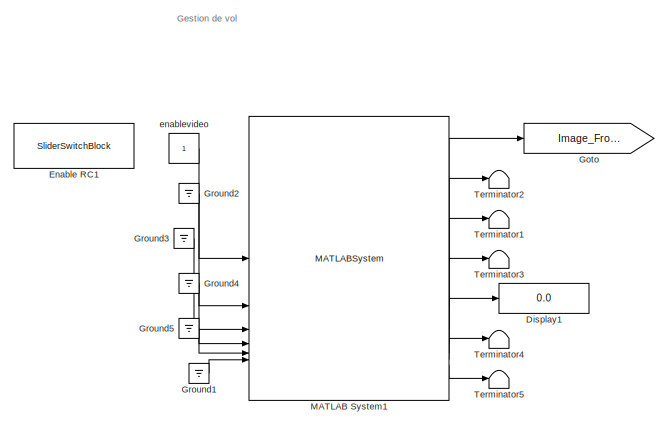
[diagram: root canvas - part 1/5, top center region]
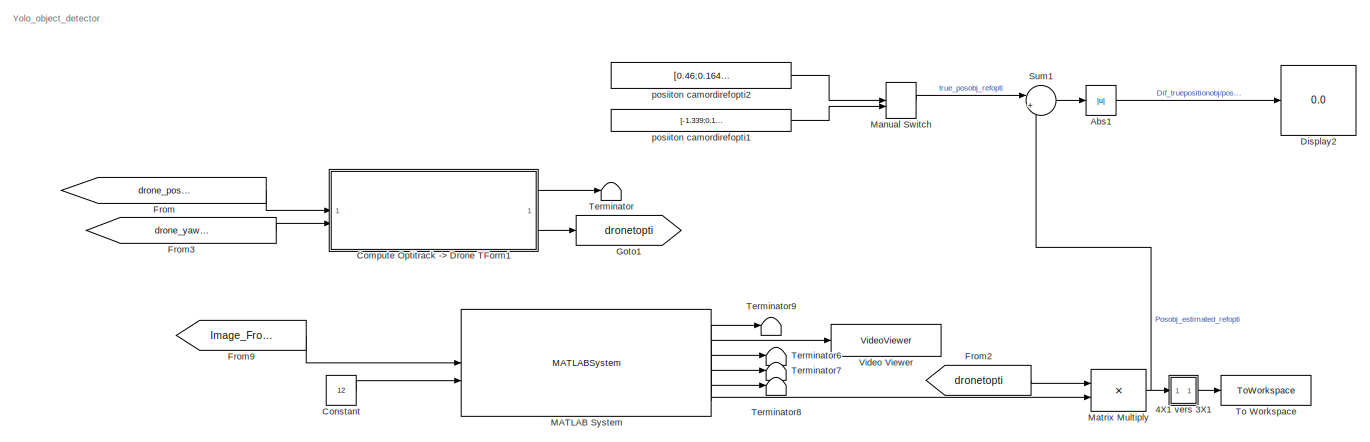
[diagram: root canvas - part 2/5, middle left region]
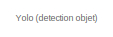
[diagram: root canvas - part 3/5, top left region]
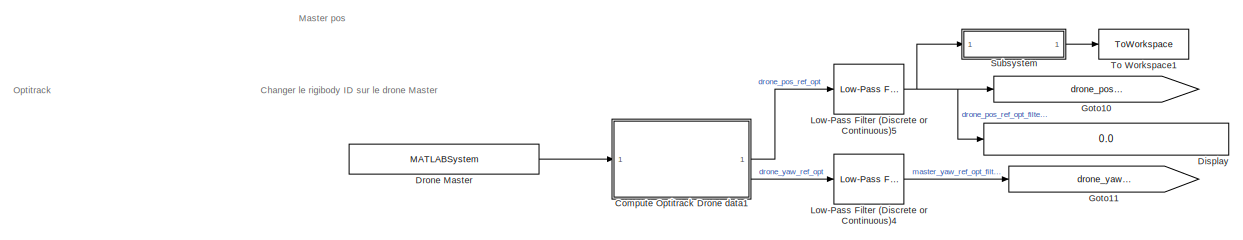
[diagram: root canvas - part 4/5, bottom left region]
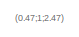
[diagram: root canvas - part 5/5, bottom right region]
MODEL slx_41b9bbb129d4
KIND model
CONFIG AbsTol = auto
CONFIG EnableMultiTasking = off
CONFIG FixedStep = auto
CONFIG MaxStep = auto
CONFIG MinStep = auto
CONFIG RelTol = 1e-3
CONFIG SampleTimeConstraint = Unconstrained
CONFIG SolverName = VariableStepAuto
CONFIG StartTime = 0.0
CONFIG StopTime = inf
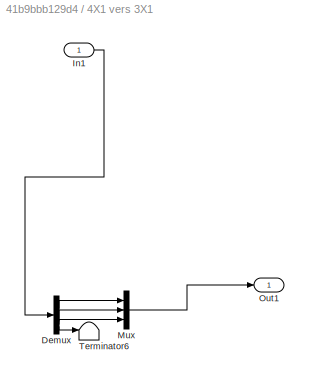
BLOCK [SubSystem] 4X1 vers 3X1
BLOCK [Demux] 4X1 vers 3X1/Demux
BLOCK [Inport] 4X1 vers 3X1/In1
BLOCK [Mux] 4X1 vers 3X1/Mux
  DisplayOption = bar
  Inputs = 3
BLOCK [Outport] 4X1 vers 3X1/Out1
BLOCK [Terminator] 4X1 vers 3X1/Terminator6
BLOCK [Abs] Abs1
  SaturateOnIntegerOverflow = off
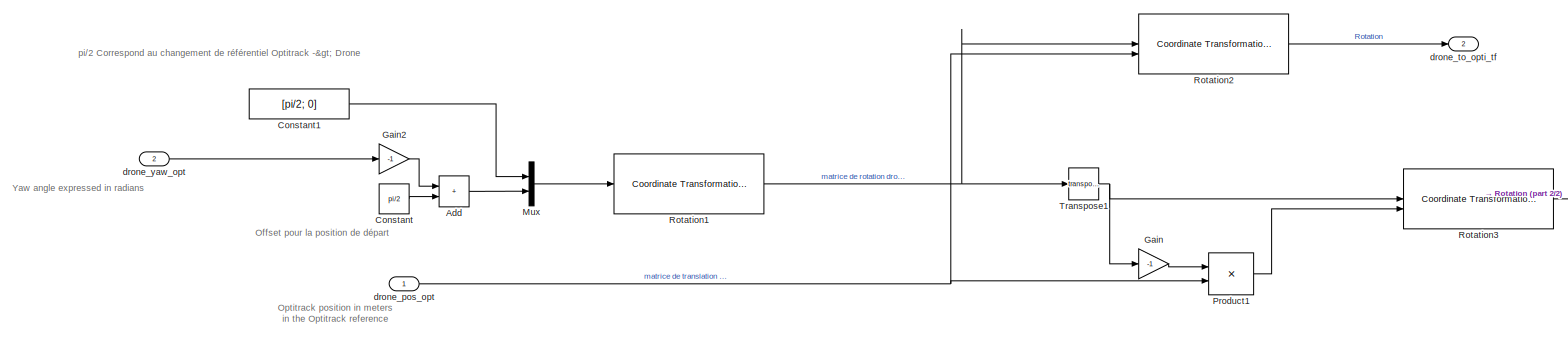
[diagram: Compute Optitrack -> Drone TForm1 - part 1/2, most of the canvas]
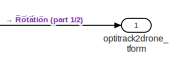
[diagram: Compute Optitrack -> Drone TForm1 - part 2/2, middle right region]
BLOCK [SubSystem] Compute Optitrack -> Drone TForm1
BLOCK [Sum] Compute Optitrack -> Drone TForm1/Add
  IconShape = rectangular
BLOCK [Constant] Compute Optitrack -> Drone TForm1/Constant
  Value = pi/2
BLOCK [Constant] Compute Optitrack -> Drone TForm1/Constant1
  Value = [pi/2; 0]
BLOCK [Gain] Compute Optitrack -> Drone TForm1/Gain
  Gain = -1
BLOCK [Gain] Compute Optitrack -> Drone TForm1/Gain2
  Gain = -1
BLOCK [Mux] Compute Optitrack -> Drone TForm1/Mux
  DisplayOption = bar
  Inputs = 2
BLOCK [Product] Compute Optitrack -> Drone TForm1/Product1
  Multiplication = Matrix(*)
BLOCK [Reference] Compute Optitrack -> Drone TForm1/Rotation1  REF=robotcorelib/Coordinate Transformation Conversion
  LibrarySourceBlock = uavutilslib/Coordinate Transformation Conversion
  SourceBlock = robotcorelib/Coordinate Transformation Conversion
  SourceType = robotics.slcore.internal.block.CoordinateTransformationConversion
BLOCK [Reference] Compute Optitrack -> Drone TForm1/Rotation2  REF=robotcorelib/Coordinate Transformation Conversion
  LibrarySourceBlock = uavutilslib/Coordinate Transformation Conversion
  SourceBlock = robotcorelib/Coordinate Transformation Conversion
  SourceType = robotics.slcore.internal.block.CoordinateTransformationConversion
BLOCK [Reference] Compute Optitrack -> Drone TForm1/Rotation3  REF=robotcorelib/Coordinate Transformation Conversion
  LibrarySourceBlock = uavutilslib/Coordinate Transformation Conversion
  SourceBlock = robotcorelib/Coordinate Transformation Conversion
  SourceType = robotics.slcore.internal.block.CoordinateTransformationConversion
BLOCK [Math] Compute Optitrack -> Drone TForm1/Transpose1
  Operator = transpose
BLOCK [Inport] Compute Optitrack -> Drone TForm1/drone_pos_opt
BLOCK [Outport] Compute Optitrack -> Drone TForm1/drone_to_opti_tf
  Port = 2
BLOCK [Inport] Compute Optitrack -> Drone TForm1/drone_yaw_opt
  Port = 2
BLOCK [Outport] Compute Optitrack -> Drone TForm1/optitrack2drone_tform
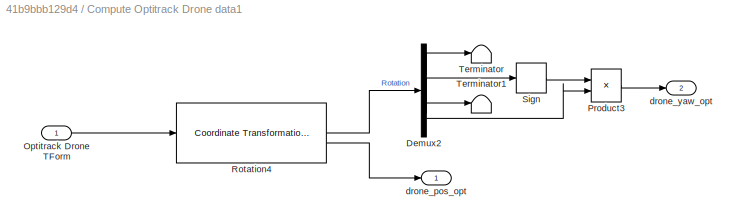
BLOCK [SubSystem] Compute Optitrack Drone data1
BLOCK [Demux] Compute Optitrack Drone data1/Demux2
BLOCK [Inport] Compute Optitrack Drone data1/Optitrack Drone TForm
BLOCK [Product] Compute Optitrack Drone data1/Product3
BLOCK [Reference] Compute Optitrack Drone data1/Rotation4  REF=robotcorelib/Coordinate Transformation Conversion
  LibrarySourceBlock = uavutilslib/Coordinate Transformation Conversion
  SourceBlock = robotcorelib/Coordinate Transformation Conversion
  SourceType = robotics.slcore.internal.block.CoordinateTransformationConversion
BLOCK [Signum] Compute Optitrack Drone data1/Sign
BLOCK [Terminator] Compute Optitrack Drone data1/Terminator
BLOCK [Terminator] Compute Optitrack Drone data1/Terminator1
BLOCK [Outport] Compute Optitrack Drone data1/drone_pos_opt
BLOCK [Outport] Compute Optitrack Drone data1/drone_yaw_opt
  Port = 2
BLOCK [Constant] Constant
  Value = 12
BLOCK [Display] Display
  Decimation = 1
BLOCK [Display] Display1
  Decimation = 1
BLOCK [Display] Display2
  Decimation = 1
BLOCK [MATLABSystem] Drone Master
  ClientIP = 10.147.125.15
  HostIP = 10.147.125.15
  MaskDisplay = disp('OptilinkSystem');\nport_label('output',1,'Drones data');
  MaskType = OptilinkSystem
  RigidbodyID = 2
  SimulateUsing = Interpreted execution
  System = OptilinkSystem
BLOCK [SliderSwitchBlock] Enable RC1
BLOCK [From] From
  GotoTag = drone_pos_master_opt_filtered
BLOCK [From] From2
  GotoTag = dronetopti
BLOCK [From] From3
  GotoTag = drone_yaw_master_opt_filtered
BLOCK [From] From9
  GotoTag = Image_Front
BLOCK [Goto] Goto
  GotoTag = Image_Front
BLOCK [Goto] Goto1
  GotoTag = dronetopti
BLOCK [Goto] Goto10
  GotoTag = drone_pos_master_opt_filtered
BLOCK [Goto] Goto11
  GotoTag = drone_yaw_master_opt_filtered
BLOCK [Ground] Ground1
BLOCK [Ground] Ground2
BLOCK [Ground] Ground3
BLOCK [Ground] Ground4
BLOCK [Ground] Ground5
BLOCK [Reference] Low-Pass Filter (Discrete or Continuous)4  REF=eeGeneralControl/Low-Pass Filter
(Discrete or Continuous)
  LibrarySourceBlock = ee_sl_lib/General Control/Low-Pass Filter\n(Discrete or Continuous)
  SourceBlock = eeGeneralControl/Low-Pass Filter\n(Discrete or Continuous)
  SourceType = Low-Pass Filter (Discrete or Continuous)
BLOCK [Reference] Low-Pass Filter (Discrete or Continuous)5  REF=eeGeneralControl/Low-Pass Filter
(Discrete or Continuous)
  LibrarySourceBlock = ee_sl_lib/General Control/Low-Pass Filter\n(Discrete or Continuous)
  SourceBlock = eeGeneralControl/Low-Pass Filter\n(Discrete or Continuous)
  SourceType = Low-Pass Filter (Discrete or Continuous)
BLOCK [MATLABSystem] MATLAB System
  MaskDisplay = disp('Yolo_Object_Detector');\nport_label('input',1,'Image');\nport_label('input',2,'degreecam');\nport_label('output',1,'Tform_camtodrone');\nport_label('output',2,'AnnotatedImage');\nport_label('output',3,'BBoxDimensions');\nport_label('output',4,'CamCoordinates');\nport_label('output',5,'posecam');\nport_label('output',6,'posecamtodrone');
  MaskType = Yolo_Object_Detector
  SimulateUsing = Interpreted execution
  System = Yolo_Object_Detector
BLOCK [MATLABSystem] MATLAB System1
  MaskDisplay = disp('Tello_drone_control');\nport_label('input',1,'enableVideo');\nport_label('input',2,'tkoff');\nport_label('input',3,'landing');\nport_label('input',4,'enableRC');\nport_label('input',5,'cmdVideoDirection');\nport_label('input',6,'rcspeeds');\nport_label('output',1,'imageFront');\nport_label('output',2,'imageDown');\nport_label('output',3,'Eulerangles');\nport_label('output',4,'speedXYZ');\nport_label('o...<+117ch>
  MaskType = Tello_drone_control
  SimulateUsing = Interpreted execution
  System = Tello_drone_control
  droneIP = 127.0.0.1
BLOCK [ManualSwitch] Manual Switch
BLOCK [Product] Matrix Multiply
  Multiplication = Matrix(*)
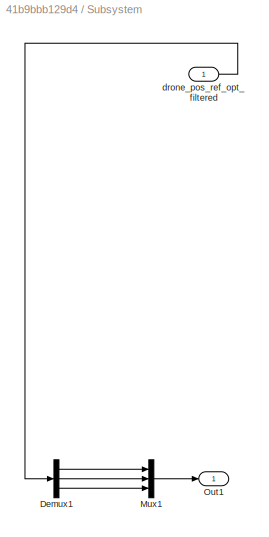
BLOCK [SubSystem] Subsystem
BLOCK [Demux] Subsystem/Demux1
  Outputs = 3
BLOCK [Mux] Subsystem/Mux1
  DisplayOption = bar
  Inputs = 3
BLOCK [Outport] Subsystem/Out1
BLOCK [Inport] Subsystem/drone_pos_ref_opt_filtered
BLOCK [Sum] Sum1
  Inputs = |+-
BLOCK [Terminator] Terminator
BLOCK [Terminator] Terminator1
BLOCK [Terminator] Terminator2
BLOCK [Terminator] Terminator3
BLOCK [Terminator] Terminator4
BLOCK [Terminator] Terminator5
BLOCK [Terminator] Terminator6
BLOCK [Terminator] Terminator7
BLOCK [Terminator] Terminator8
BLOCK [Terminator] Terminator9
BLOCK [ToWorkspace] To Workspace
  FixptAsFi = on
  MaxDataPoints = inf
  SampleTime = -1
  VariableName = objectPositions
BLOCK [ToWorkspace] To Workspace1
  FixptAsFi = on
  MaxDataPoints = inf
  SampleTime = -1
  VariableName = groundtruthopti
BLOCK [VideoViewer] Video Viewer
  FigPos = [-1470 1113 894 700]
  ScopeSpecificationString = vipscopes.VideoViewerScopeCfg('CurrentConfiguration', extmgr.ConfigurationSet(extmgr.Configuration('Core','General UI',true),extmgr.Configuration('Core','Source UI',true),extmgr.Configuration('Sources','WiredSimulink',true),extmgr.Configuration('Sources','SimulinkEvent',false),extmgr.Configuration('Sources','Simulink',false),extmgr.Configuration('Sources','File',false),extmgr.Configuration('Source...<+1623ch>
  colormapValue = gray(256)
BLOCK [Constant] enablevideo
BLOCK [Constant] posiiton camordirefopti1
  Value = [-1.339;0.1470;0.61;1]
BLOCK [Constant] posiiton camordirefopti2
  Value = [0.46;0.1649;-1.05;1]
ANNOTATION (root): (0.47;1;2.47)
ANNOTATION (root): Gestion de vol
ANNOTATION (root): Optitrack
ANNOTATION (root): Yolo (detection objet)
ANNOTATION (root): Changer le rigibody ID sur le drone Master
ANNOTATION (root): Master pos
ANNOTATION (root): Yolo_object_detector
ANNOTATION Compute Optitrack -> Drone TForm1: pi/2 Correspond au changement de référentiel Optitrack -> Drone
ANNOTATION Compute Optitrack -> Drone TForm1: Optitrack position in meters in the Optitrack reference
ANNOTATION Compute Optitrack -> Drone TForm1: Yaw angle expressed in radians
ANNOTATION Compute Optitrack -> Drone TForm1: Offset pour la position de départ
LINE 4X1 vers 3X1/Demux:1 -> 4X1 vers 3X1/Mux:1
LINE 4X1 vers 3X1/Demux:2 -> 4X1 vers 3X1/Mux:2
LINE 4X1 vers 3X1/Demux:3 -> 4X1 vers 3X1/Mux:3
LINE 4X1 vers 3X1/Demux:4 -> 4X1 vers 3X1/Terminator6:1
LINE 4X1 vers 3X1/In1:1 -> 4X1 vers 3X1/Demux:1
LINE 4X1 vers 3X1/Mux:1 -> 4X1 vers 3X1/Out1:1
LINE 4X1 vers 3X1:1 -> To Workspace:1
LINE Abs1:1 -> Display2:1
LINE Compute Optitrack -> Drone TForm1/Add:1 -> Compute Optitrack -> Drone TForm1/Mux:2
LINE Compute Optitrack -> Drone TForm1/Constant1:1 -> Compute Optitrack -> Drone TForm1/Mux:1
LINE Compute Optitrack -> Drone TForm1/Constant:1 -> Compute Optitrack -> Drone TForm1/Add:2
LINE Compute Optitrack -> Drone TForm1/Gain2:1 -> Compute Optitrack -> Drone TForm1/Add:1
LINE Compute Optitrack -> Drone TForm1/Gain:1 -> Compute Optitrack -> Drone TForm1/Product1:1
LINE Compute Optitrack -> Drone TForm1/Mux:1 -> Compute Optitrack -> Drone TForm1/Rotation1:1
LINE Compute Optitrack -> Drone TForm1/Product1:1 -> Compute Optitrack -> Drone TForm1/Rotation3:2
NET Compute Optitrack -> Drone TForm1/Rotation1:1 -> Compute Optitrack -> Drone TForm1/Rotation2:1, Compute Optitrack -> Drone TForm1/Transpose1:1
LINE Compute Optitrack -> Drone TForm1/Rotation2:1 -> Compute Optitrack -> Drone TForm1/drone_to_opti_tf:1
LINE Compute Optitrack -> Drone TForm1/Rotation3:1 -> Compute Optitrack -> Drone TForm1/optitrack2drone_tform:1
NET Compute Optitrack -> Drone TForm1/Transpose1:1 -> Compute Optitrack -> Drone TForm1/Gain:1, Compute Optitrack -> Drone TForm1/Rotation3:1
NET Compute Optitrack -> Drone TForm1/drone_pos_opt:1 -> Compute Optitrack -> Drone TForm1/Product1:2, Compute Optitrack -> Drone TForm1/Rotation2:2
LINE Compute Optitrack -> Drone TForm1/drone_yaw_opt:1 -> Compute Optitrack -> Drone TForm1/Gain2:1
LINE Compute Optitrack -> Drone TForm1:1 -> Terminator:1
LINE Compute Optitrack -> Drone TForm1:2 -> Goto1:1
LINE Compute Optitrack Drone data1/Demux2:1 -> Compute Optitrack Drone data1/Terminator:1
LINE Compute Optitrack Drone data1/Demux2:2 -> Compute Optitrack Drone data1/Sign:1
LINE Compute Optitrack Drone data1/Demux2:3 -> Compute Optitrack Drone data1/Terminator1:1
LINE Compute Optitrack Drone data1/Demux2:4 -> Compute Optitrack Drone data1/Product3:2
LINE Compute Optitrack Drone data1/Optitrack Drone TForm:1 -> Compute Optitrack Drone data1/Rotation4:1
LINE Compute Optitrack Drone data1/Product3:1 -> Compute Optitrack Drone data1/drone_yaw_opt:1
LINE Compute Optitrack Drone data1/Rotation4:1 -> Compute Optitrack Drone data1/Demux2:1
LINE Compute Optitrack Drone data1/Rotation4:2 -> Compute Optitrack Drone data1/drone_pos_opt:1
LINE Compute Optitrack Drone data1/Sign:1 -> Compute Optitrack Drone data1/Product3:1
LINE Compute Optitrack Drone data1:1 -> Low-Pass Filter (Discrete or Continuous)5:1
LINE Compute Optitrack Drone data1:2 -> Low-Pass Filter (Discrete or Continuous)4:1
LINE Constant:1 -> MATLAB System:2
LINE Drone Master:1 -> Compute Optitrack Drone data1:1
LINE From2:1 -> Matrix Multiply:1
LINE From3:1 -> Compute Optitrack -> Drone TForm1:2
LINE From9:1 -> MATLAB System:1
LINE From:1 -> Compute Optitrack -> Drone TForm1:1
LINE Ground1:1 -> MATLAB System1:6
LINE Ground2:1 -> MATLAB System1:2
LINE Ground3:1 -> MATLAB System1:3
LINE Ground4:1 -> MATLAB System1:4
LINE Ground5:1 -> MATLAB System1:5
LINE Low-Pass Filter (Discrete or Continuous)4:1 -> Goto11:1
NET Low-Pass Filter (Discrete or Continuous)5:1 -> Display:1, Goto10:1, Subsystem:1
LINE MATLAB System1:1 -> Goto:1
LINE MATLAB System1:2 -> Terminator2:1
LINE MATLAB System1:3 -> Terminator1:1
LINE MATLAB System1:4 -> Terminator3:1
LINE MATLAB System1:5 -> Display1:1
LINE MATLAB System1:6 -> Terminator4:1
LINE MATLAB System1:7 -> Terminator5:1
LINE MATLAB System:1 -> Terminator9:1
LINE MATLAB System:2 -> Video Viewer:1
LINE MATLAB System:3 -> Terminator6:1
LINE MATLAB System:4 -> Terminator7:1
LINE MATLAB System:5 -> Terminator8:1
LINE MATLAB System:6 -> Matrix Multiply:2
LINE Manual Switch:1 -> Sum1:1
NET Matrix Multiply:1 -> 4X1 vers 3X1:1, Sum1:2
LINE Subsystem/Demux1:1 -> Subsystem/Mux1:1
LINE Subsystem/Demux1:2 -> Subsystem/Mux1:2
LINE Subsystem/Demux1:3 -> Subsystem/Mux1:3
LINE Subsystem/Mux1:1 -> Subsystem/Out1:1
LINE Subsystem/drone_pos_ref_opt_filtered:1 -> Subsystem/Demux1:1
LINE Subsystem:1 -> To Workspace1:1
LINE Sum1:1 -> Abs1:1
LINE enablevideo:1 -> MATLAB System1:1
LINE posiiton camordirefopti1:1 -> Manual Switch:2
LINE posiiton camordirefopti2:1 -> Manual Switch:1
note: NET lines group one-source signal fan-out (src -> all destinations, sorted); 1:1 wires keep LINE
